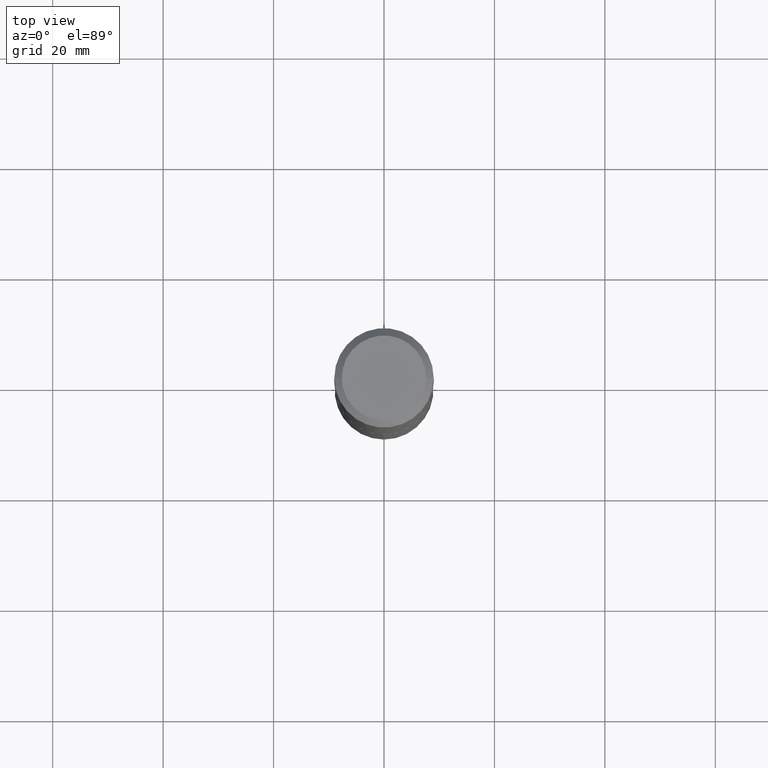
[diagram: clean part render]
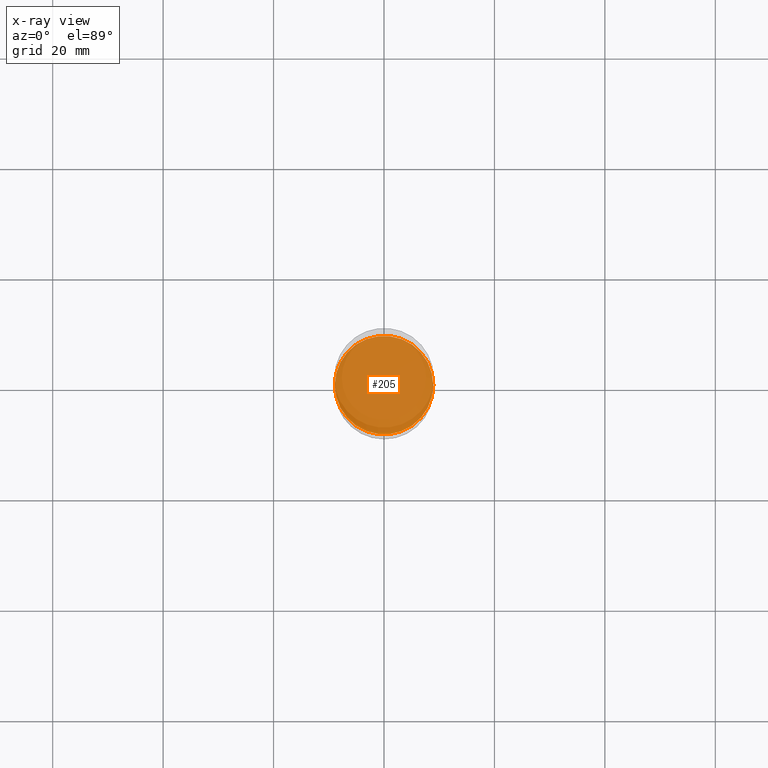
[diagram: x-ray — body ghosted, one internal face saturated and labeled with its STEP entity id]
A machine part, top view, then the same camera in x-ray: the body is ghosted and one INTERNAL B-rep face — a face not visible from any outside direction — is saturated and labeled: STEP entity #205.
In plain terms, the highlighted planar face has unit normal (-0, 0, 1).
Its self-contained STEP definition (entity closure, byte-faithful):
#36 = DIRECTION ( 'NONE',  ( 1.000000000000000000, -6.982962677686266711E-15, 0.000000000000000000 ) ) ;
#43 = PLANE ( 'NONE',  #386 ) ;
#51 = CIRCLE ( 'NONE', #157, 0.3510500000000000287 ) ;
#59 = DIRECTION ( 'NONE',  ( 1.000000000000000000, -6.982962677686266711E-15, 0.000000000000000000 ) ) ;
#98 = CARTESIAN_POINT ( 'NONE',  ( 7.510279250675172753E-29, -1.072268833972118442E-14, -3.071099999999999941 ) ) ;
#104 = DIRECTION ( 'NONE',  ( 1.000000000000000000, -6.982962677686265922E-15, 4.876176775795935793E-29 ) ) ;
#117 = CARTESIAN_POINT ( 'NONE',  ( 7.510279250675172753E-29, -1.072268833972118442E-14, -3.071099999999999941 ) ) ;
#126 = ORIENTED_EDGE ( 'NONE', *, *, #467, .F. ) ;
#127 = CARTESIAN_POINT ( 'NONE',  ( 0.3510500000000000287, -1.317405738772294887E-14, -3.071099999999999941 ) ) ;
#157 = AXIS2_PLACEMENT_3D ( 'NONE', #468, #236, #59 ) ;
#192 = VERTEX_POINT ( 'NONE', #127 ) ;
#198 = EDGE_CURVE ( 'NONE', #381, #192, #221, .T. ) ;
#205 = ADVANCED_FACE ( 'NONE', ( #333 ), #43, .F. ) ;
#215 = ORIENTED_EDGE ( 'NONE', *, *, #198, .F. ) ;
#221 = CIRCLE ( 'NONE', #230, 0.3510500000000000287 ) ;
#230 = AXIS2_PLACEMENT_3D ( 'NONE', #98, #322, #36 ) ;
#236 = DIRECTION ( 'NONE',  ( -2.445468806185136597E-29, 3.491481338843145583E-15, 1.000000000000000000 ) ) ;
#317 = EDGE_LOOP ( 'NONE', ( #126, #215 ) ) ;
#322 = DIRECTION ( 'NONE',  ( -2.445468806185136597E-29, 3.491481338843145583E-15, 1.000000000000000000 ) ) ;
#333 = FACE_OUTER_BOUND ( 'NONE', #317, .T. ) ;
#381 = VERTEX_POINT ( 'NONE', #424 ) ;
#386 = AXIS2_PLACEMENT_3D ( 'NONE', #117, #436, #104 ) ;
#424 = CARTESIAN_POINT ( 'NONE',  ( -0.3510500000000000287, -8.225678838661240125E-15, -3.071099999999999941 ) ) ;
#436 = DIRECTION ( 'NONE',  ( -2.438088387897960049E-29, 3.491481338843145188E-15, 1.000000000000000000 ) ) ;
#467 = EDGE_CURVE ( 'NONE', #192, #381, #51, .T. ) ;
#468 = CARTESIAN_POINT ( 'NONE',  ( 7.510279250675172753E-29, -1.072268833972118442E-14, -3.071099999999999941 ) ) ;